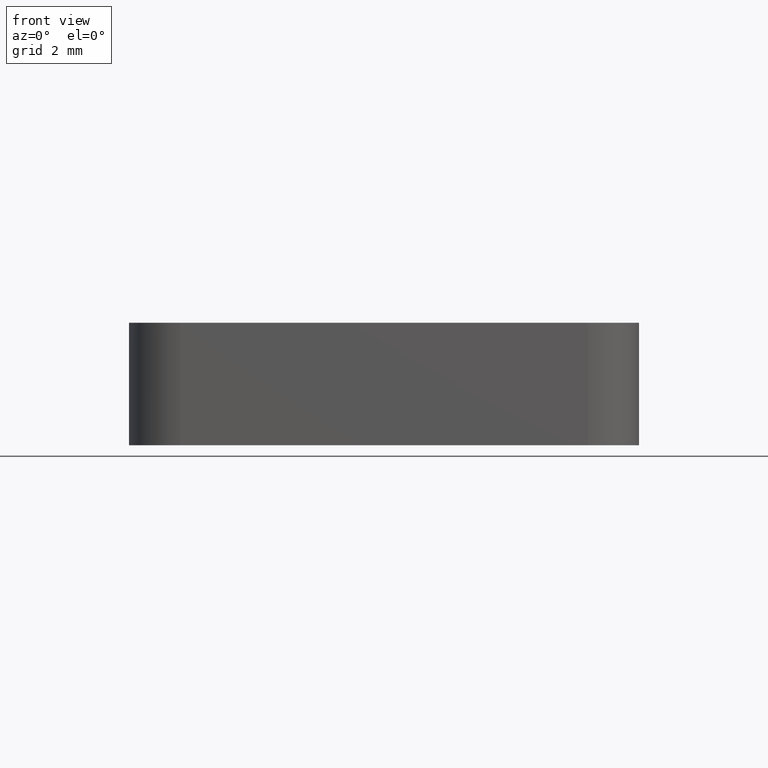
[diagram: clean part render]
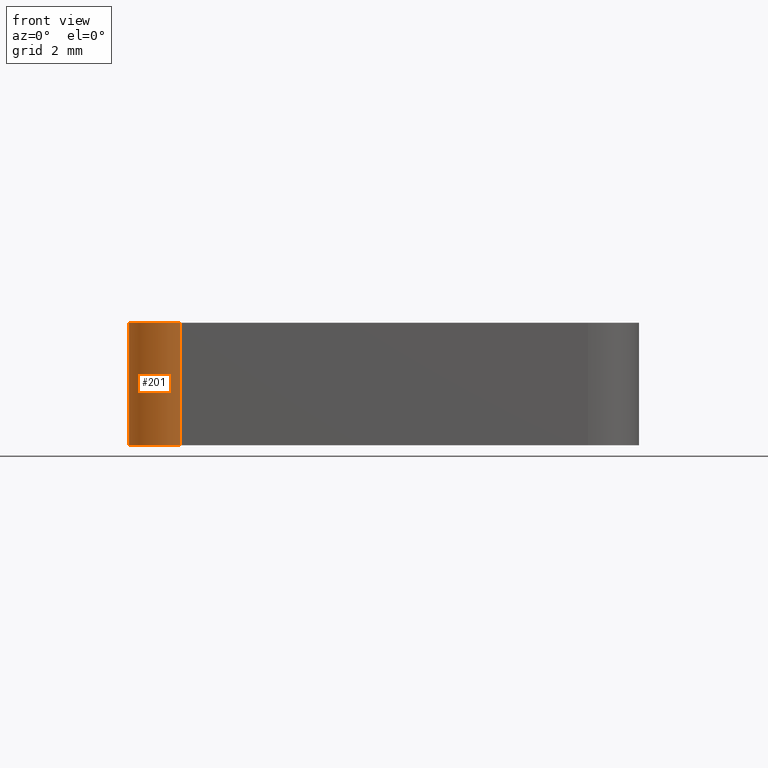
[diagram: same view with one face highlighted and labeled with its STEP entity id]
A machine part, front view. The second image highlights one B-rep face of the part: STEP entity #201.
In plain terms, the highlighted cylindrical surface (partial cylindrical patch) has radius 1 mm, axis along (0, 0, 1).
Its self-contained STEP definition (entity closure, byte-faithful):
#24=FACE_OUTER_BOUND('',#35,.T.);
#35=EDGE_LOOP('',(#144,#145,#146,#147));
#48=LINE('',#330,#65);
#49=LINE('',#333,#66);
#65=VECTOR('',#268,10.);
#66=VECTOR('',#271,10.);
#84=CIRCLE('',#236,1.);
#85=CIRCLE('',#237,1.);
#95=VERTEX_POINT('',#326);
#96=VERTEX_POINT('',#327);
#97=VERTEX_POINT('',#329);
#98=VERTEX_POINT('',#331);
#115=EDGE_CURVE('',#95,#96,#84,.T.);
#116=EDGE_CURVE('',#96,#97,#48,.T.);
#117=EDGE_CURVE('',#97,#98,#85,.T.);
#118=EDGE_CURVE('',#98,#95,#49,.T.);
#144=ORIENTED_EDGE('',*,*,#115,.T.);
#145=ORIENTED_EDGE('',*,*,#116,.T.);
#146=ORIENTED_EDGE('',*,*,#117,.T.);
#147=ORIENTED_EDGE('',*,*,#118,.T.);
#196=CYLINDRICAL_SURFACE('',#235,1.);
#201=ADVANCED_FACE('',(#24),#196,.T.);
#235=AXIS2_PLACEMENT_3D('',#325,#264,#265);
#236=AXIS2_PLACEMENT_3D('',#328,#266,#267);
#237=AXIS2_PLACEMENT_3D('',#332,#269,#270);
#264=DIRECTION('center_axis',(0.,0.,1.));
#265=DIRECTION('ref_axis',(-0.707106781186547,-0.707106781186548,0.));
#266=DIRECTION('center_axis',(0.,0.,-1.));
#267=DIRECTION('ref_axis',(-0.707106781186547,-0.707106781186548,0.));
#268=DIRECTION('',(0.,0.,-1.));
#269=DIRECTION('center_axis',(0.,0.,1.));
#270=DIRECTION('ref_axis',(-0.707106781186547,-0.707106781186548,0.));
#271=DIRECTION('',(0.,0.,1.));
#325=CARTESIAN_POINT('Origin',(-4.,-4.,0.));
#326=CARTESIAN_POINT('',(-4.,-5.,0.));
#327=CARTESIAN_POINT('',(-5.,-4.,0.));
#328=CARTESIAN_POINT('Origin',(-4.,-4.,0.));
#329=CARTESIAN_POINT('',(-5.,-4.,-2.4));
#330=CARTESIAN_POINT('',(-5.,-4.,0.));
#331=CARTESIAN_POINT('',(-4.,-5.,-2.4));
#332=CARTESIAN_POINT('Origin',(-4.,-4.,-2.4));
#333=CARTESIAN_POINT('',(-4.,-5.,0.));